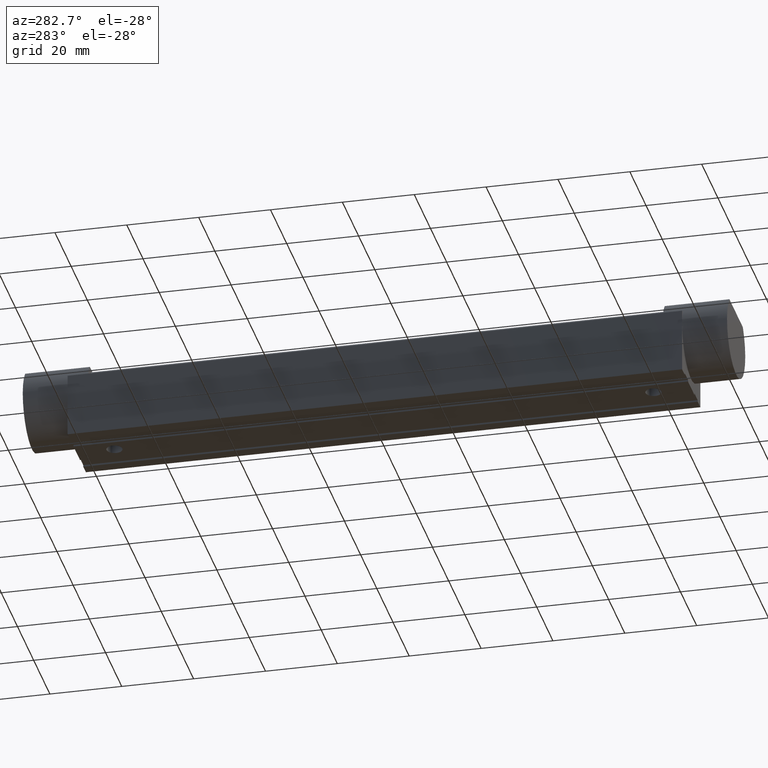
[diagram: clean part render]
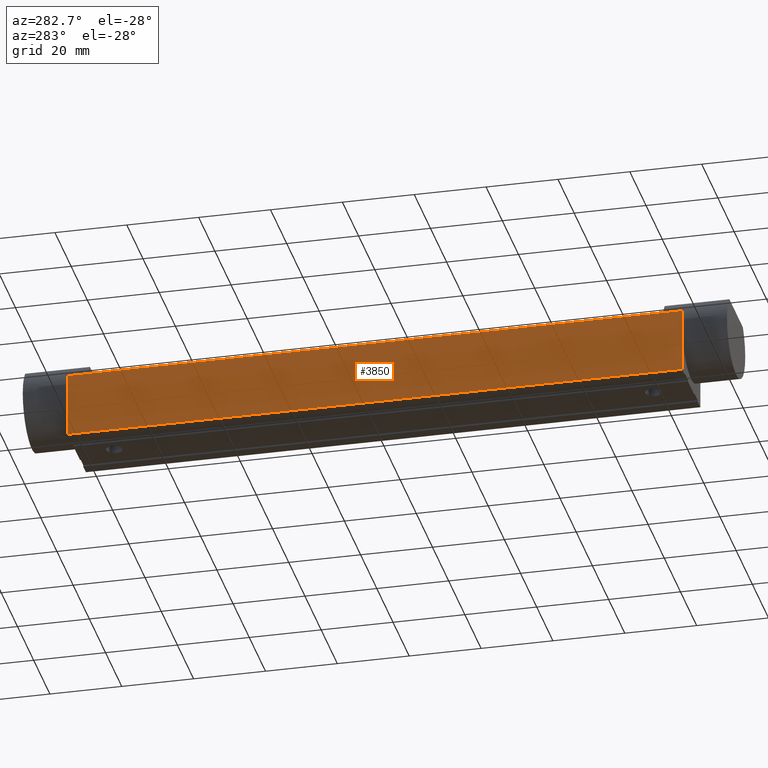
[diagram: same view with one face highlighted and labeled with its STEP entity id]
A machine part, auxiliary view. The second image highlights one B-rep face of the part: STEP entity #3850.
In plain terms, the highlighted planar face has unit normal (1, 0, 0).
Its self-contained STEP definition (entity closure, byte-faithful):
#890=CARTESIAN_POINT('',(183.5,-11.25,-4.));
#900=VERTEX_POINT('',#890);
#1720=CARTESIAN_POINT('',(183.5,-11.2492250572074,-18.));
#1730=VERTEX_POINT('',#1720);
#1760=CARTESIAN_POINT('',(183.5,-11.25,0.));
#1770=DIRECTION('',(0.,0.,1.));
#1780=VECTOR('',#1770,1.);
#1790=LINE('',#1760,#1780);
#1800=EDGE_CURVE('',#1730,#900,#1790,.T.);
#3470=CARTESIAN_POINT('',(106.55,-11.25,-4.50000000000001));
#3480=DIRECTION('',(0.,1.,0.));
#3490=DIRECTION('',(0.,0.,1.));
#3500=AXIS2_PLACEMENT_3D('',#3470,#3480,#3490);
#3510=PLANE('',#3500);
#3520=CARTESIAN_POINT('',(12.5,-11.25,0.));
#3530=DIRECTION('',(0.,0.,1.));
#3540=VECTOR('',#3530,1.);
#3550=LINE('',#3520,#3540);
#3560=CARTESIAN_POINT('',(12.5,-11.25,-22.));
#3570=VERTEX_POINT('',#3560);
#3580=CARTESIAN_POINT('',(12.5,-11.2492250572074,-18.));
#3590=VERTEX_POINT('',#3580);
#3600=EDGE_CURVE('',#3570,#3590,#3550,.T.);
#3610=ORIENTED_EDGE('',*,*,#3600,.F.);
#3620=CARTESIAN_POINT('',(12.5,-11.25,-4.));
#3630=VERTEX_POINT('',#3620);
#3640=EDGE_CURVE('',#3590,#3630,#3550,.T.);
#3650=ORIENTED_EDGE('',*,*,#3640,.F.);
#3660=CARTESIAN_POINT('',(0.,-11.25,-4.));
#3670=DIRECTION('',(-1.,0.,0.));
#3680=VECTOR('',#3670,1.);
#3690=LINE('',#3660,#3680);
#3700=EDGE_CURVE('',#900,#3630,#3690,.T.);
#3710=ORIENTED_EDGE('',*,*,#3700,.T.);
#3720=ORIENTED_EDGE('',*,*,#1800,.T.);
#3730=CARTESIAN_POINT('',(183.5,-11.25,-22.));
#3740=VERTEX_POINT('',#3730);
#3750=EDGE_CURVE('',#3740,#1730,#1790,.T.);
#3760=ORIENTED_EDGE('',*,*,#3750,.T.);
#3770=CARTESIAN_POINT('',(0.,-11.25,-22.));
#3780=DIRECTION('',(-1.,0.,0.));
#3790=VECTOR('',#3780,1.);
#3800=LINE('',#3770,#3790);
#3810=EDGE_CURVE('',#3740,#3570,#3800,.T.);
#3820=ORIENTED_EDGE('',*,*,#3810,.F.);
#3830=EDGE_LOOP('',(#3820,#3760,#3720,#3710,#3650,#3610));
#3840=FACE_OUTER_BOUND('',#3830,.T.);
#3850=ADVANCED_FACE('',(#3840),#3510,.F.);